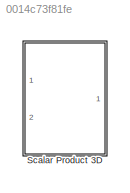
MODEL slx_0014c73f81fe
KIND library
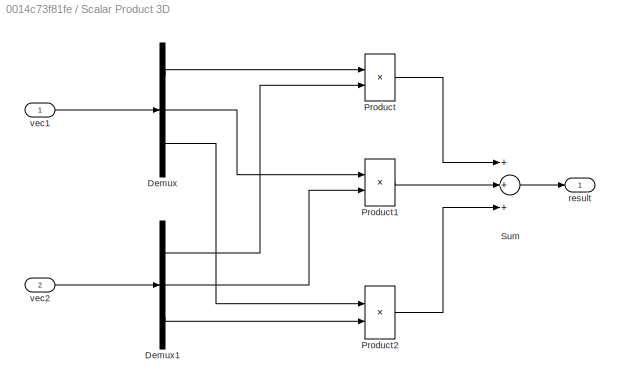
BLOCK [SubSystem] Scalar Product 3D
  Ports = [2, 1]
  RequestExecContextInheritance = off
BLOCK [Demux] Scalar Product 3D/Demux
  DisplayOption = bar
  Outputs = 3
  Ports = [1, 3]
BLOCK [Demux] Scalar Product 3D/Demux1
  DisplayOption = bar
  Outputs = 3
  Ports = [1, 3]
BLOCK [Product] Scalar Product 3D/Product
  InputSameDT = off
  OutDataTypeStr = Inherit: Inherit via internal rule
  Ports = [2, 1]
  RndMeth = Floor
  SaturateOnIntegerOverflow = off
BLOCK [Product] Scalar Product 3D/Product1
  InputSameDT = off
  OutDataTypeStr = Inherit: Inherit via internal rule
  Ports = [2, 1]
  RndMeth = Floor
  SaturateOnIntegerOverflow = off
BLOCK [Product] Scalar Product 3D/Product2
  InputSameDT = off
  OutDataTypeStr = Inherit: Inherit via internal rule
  Ports = [2, 1]
  RndMeth = Floor
  SaturateOnIntegerOverflow = off
BLOCK [Sum] Scalar Product 3D/Sum
  InputSameDT = off
  Inputs = +++
  OutDataTypeStr = Inherit: Inherit via internal rule
  Ports = [3, 1]
  SaturateOnIntegerOverflow = off
BLOCK [Outport] Scalar Product 3D/result
  IconDisplay = Port number
BLOCK [Inport] Scalar Product 3D/vec1
  IconDisplay = Port number
BLOCK [Inport] Scalar Product 3D/vec2
  IconDisplay = Port number
  Port = 2
LINE Scalar Product 3D/Demux1:1 -> Scalar Product 3D/Product:2
LINE Scalar Product 3D/Demux1:2 -> Scalar Product 3D/Product1:2
LINE Scalar Product 3D/Demux1:3 -> Scalar Product 3D/Product2:2
LINE Scalar Product 3D/Demux:1 -> Scalar Product 3D/Product:1
LINE Scalar Product 3D/Demux:2 -> Scalar Product 3D/Product1:1
LINE Scalar Product 3D/Demux:3 -> Scalar Product 3D/Product2:1
LINE Scalar Product 3D/Product1:1 -> Scalar Product 3D/Sum:2
LINE Scalar Product 3D/Product2:1 -> Scalar Product 3D/Sum:3
LINE Scalar Product 3D/Product:1 -> Scalar Product 3D/Sum:1
LINE Scalar Product 3D/Sum:1 -> Scalar Product 3D/result:1
LINE Scalar Product 3D/vec1:1 -> Scalar Product 3D/Demux:1
LINE Scalar Product 3D/vec2:1 -> Scalar Product 3D/Demux1:1
